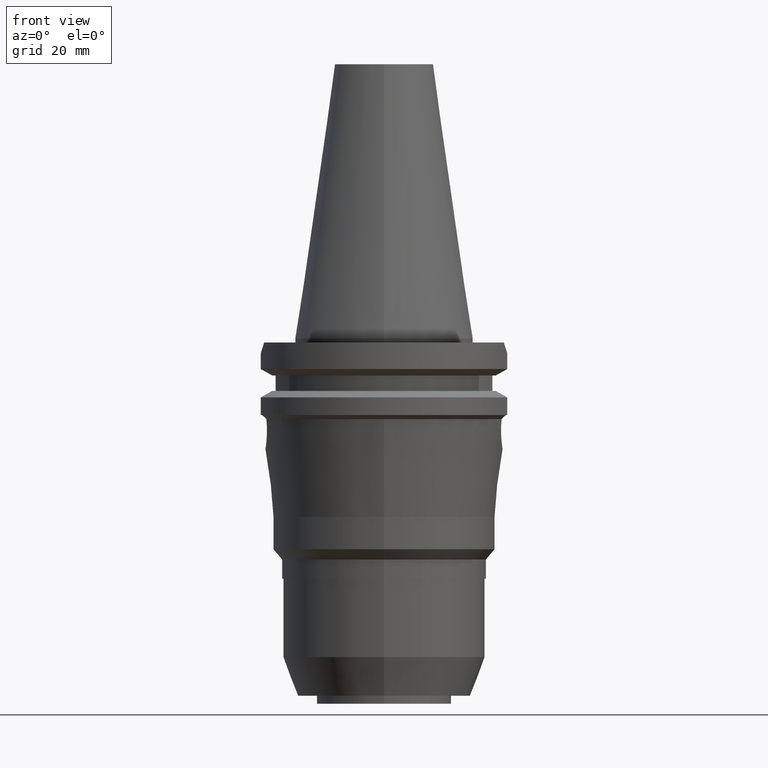
[diagram: clean part render]
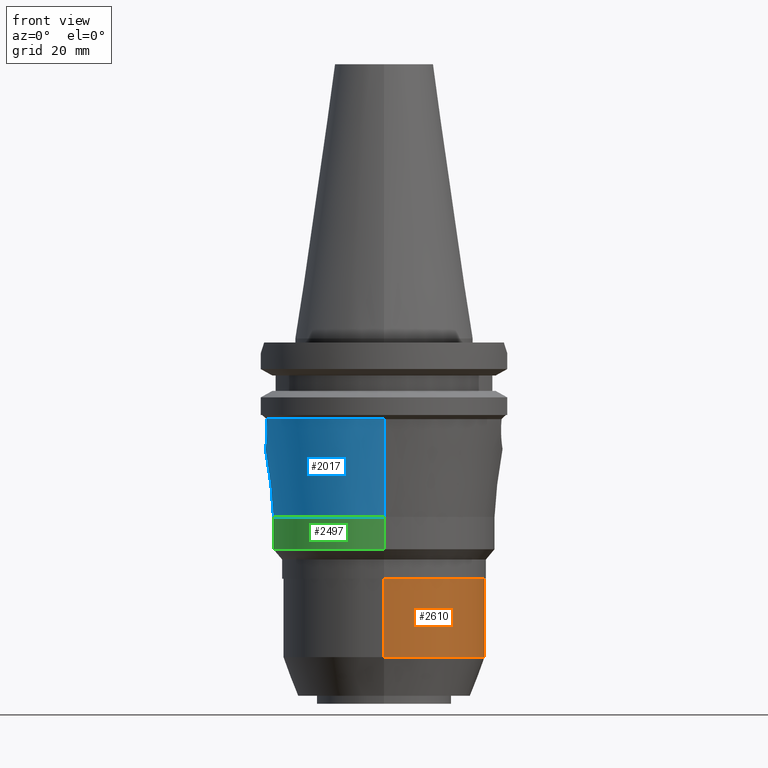
[diagram: same view with three faces highlighted in distinct colors, each labeled with its STEP entity id]
A machine part, front view with three faces highlighted in distinct colors.
Their STEP definitions:

[orange] entity #2610 — the highlighted cylindrical surface (partial cylindrical patch) has radius 25 mm, axis along (0, 0, -1).
#1199=CARTESIAN_POINT('',(0.E0,2.157919508608E-14,-5.98E1));
#1200=DIRECTION('',(0.E0,0.E0,-1.E0));
#1201=DIRECTION('',(0.E0,1.E0,0.E0));
#1202=AXIS2_PLACEMENT_3D('',#1199,#1200,#1201);
#1207=DIRECTION('',(0.E0,5.010237239334E-14,-1.E0));
#1208=VECTOR('',#1207,1.95E1);
#1209=CARTESIAN_POINT('',(0.E0,-2.5E1,-5.98E1));
#1210=LINE('',#1209,#1208);
#1214=DIRECTION('',(0.E0,-5.046675328347E-14,-1.E0));
#1215=VECTOR('',#1214,1.95E1);
#1216=CARTESIAN_POINT('',(0.E0,2.5E1,-5.98E1));
#1217=LINE('',#1216,#1215);
#1228=CARTESIAN_POINT('',(0.E0,0.E0,-7.93E1));
#1229=DIRECTION('',(0.E0,0.E0,1.E0));
#1230=DIRECTION('',(0.E0,-1.E0,0.E0));
#1231=AXIS2_PLACEMENT_3D('',#1228,#1229,#1230);
#1563=CARTESIAN_POINT('',(0.E0,2.5E1,-7.93E1));
#1564=VERTEX_POINT('',#1563);
#1565=CARTESIAN_POINT('',(0.E0,-2.5E1,-7.93E1));
#1566=VERTEX_POINT('',#1565);
#1567=CARTESIAN_POINT('',(0.E0,2.5E1,-5.98E1));
#1568=VERTEX_POINT('',#1567);
#1569=CARTESIAN_POINT('',(0.E0,-2.5E1,-5.98E1));
#1570=VERTEX_POINT('',#1569);
#2598=CARTESIAN_POINT('',(0.E0,2.157919508608E-14,7.62075E1));
#2599=DIRECTION('',(0.E0,0.E0,-1.E0));
#2600=DIRECTION('',(0.E0,-1.E0,0.E0));
#2601=AXIS2_PLACEMENT_3D('',#2598,#2599,#2600);
#2602=CYLINDRICAL_SURFACE('',#2601,2.5E1);
#2603=ORIENTED_EDGE('',*,*,#2588,.T.);
#2605=ORIENTED_EDGE('',*,*,#2604,.F.);
#2606=ORIENTED_EDGE('',*,*,#2591,.F.);
#2607=ORIENTED_EDGE('',*,*,#2578,.F.);
#2608=EDGE_LOOP('',(#2603,#2605,#2606,#2607));
#2609=FACE_OUTER_BOUND('',#2608,.F.);
#1203=CIRCLE('',#1202,2.5E1);
#1232=CIRCLE('',#1231,2.5E1);
#2578=EDGE_CURVE('',#1568,#1570,#1203,.T.);
#2588=EDGE_CURVE('',#1568,#1564,#1217,.T.);
#2591=EDGE_CURVE('',#1570,#1566,#1210,.T.);
#2604=EDGE_CURVE('',#1566,#1564,#1232,.T.);
#2610=ADVANCED_FACE('',(#2609),#2602,.T.);

[blue] entity #2017 — the highlighted conical surface has half-angle 6.749 deg.
#308=CARTESIAN_POINT('',(0.E0,0.E0,-2.005E1));
#309=DIRECTION('',(0.E0,0.E0,-1.E0));
#310=DIRECTION('',(-9.632883041744E-1,2.684690727827E-1,0.E0));
#311=AXIS2_PLACEMENT_3D('',#308,#309,#310);
#366=DIRECTION('',(0.E0,-1.175200651256E-1,-9.930705082183E-1));
#367=VECTOR('',#366,2.451991051843E1);
#368=CARTESIAN_POINT('',(0.E0,3.038158148100E1,-2.005E1));
#369=LINE('',#368,#367);
#389=CARTESIAN_POINT('',(-2.926622492553E1,8.156505483748E0,-2.004999819525E1));
#390=CARTESIAN_POINT('',(-2.921099384397E1,8.105146868599E0,-2.061609232912E1));
#391=CARTESIAN_POINT('',(-2.913501050834E1,7.883604053637E0,-2.173912690739E1));
#392=CARTESIAN_POINT('',(-2.911888775648E1,7.211097476447E0,-2.331831633671E1));
#393=CARTESIAN_POINT('',(-2.917951509164E1,6.216079261448E0,-2.473371616049E1));
#394=CARTESIAN_POINT('',(-2.928217504650E1,4.964354125946E0,-2.589915771780E1));
#395=CARTESIAN_POINT('',(-2.939350403278E1,3.467504020017E0,-2.679883849190E1));
#396=CARTESIAN_POINT('',(-2.947804265048E1,1.796455461381E0,-2.736491243958E1));
#397=CARTESIAN_POINT('',(-2.951006652893E1,4.719924837975E-2,
-2.756231201714E1));
#398=CARTESIAN_POINT('',(-2.948124837166E1,-1.703083218656E0,
-2.738502935618E1));
#399=CARTESIAN_POINT('',(-2.939912087724E1,-3.380279034446E0,
-2.683885799871E1));
#400=CARTESIAN_POINT('',(-2.928771767949E1,-4.897065401045E0,
-2.595116035239E1));
#401=CARTESIAN_POINT('',(-2.918217386241E1,-6.180490907556E0,
-2.477751119458E1));
#402=CARTESIAN_POINT('',(-2.911885776516E1,-7.199828511934E0,
-2.334278554672E1));
#403=CARTESIAN_POINT('',(-2.913464997163E1,-7.884339306547E0,
-2.174059414525E1));
#404=CARTESIAN_POINT('',(-2.921112291532E1,-8.105258966286E0,
-2.061478759710E1));
#405=CARTESIAN_POINT('',(-2.926622656216E1,-8.156499315550E0,
-2.004999908217E1));
#410=DIRECTION('',(0.E0,1.175200651256E-1,-9.930705082183E-1));
#411=VECTOR('',#410,2.451991051843E1);
#412=CARTESIAN_POINT('',(0.E0,-3.038158148100E1,-2.005E1));
#413=LINE('',#412,#411);
#417=CARTESIAN_POINT('',(0.E0,0.E0,-4.44E1));
#418=DIRECTION('',(0.E0,0.E0,-1.E0));
#419=DIRECTION('',(0.E0,-1.E0,0.E0));
#420=AXIS2_PLACEMENT_3D('',#417,#418,#419);
#822=CARTESIAN_POINT('',(0.E0,0.E0,-2.005E1));
#823=DIRECTION('',(0.E0,0.E0,-1.E0));
#824=DIRECTION('',(0.E0,-1.E0,0.E0));
#825=AXIS2_PLACEMENT_3D('',#822,#823,#824);
#1583=CARTESIAN_POINT('',(0.E0,2.75E1,-4.44E1));
#1584=VERTEX_POINT('',#1583);
#1585=CARTESIAN_POINT('',(0.E0,-2.75E1,-4.44E1));
#1586=VERTEX_POINT('',#1585);
#1587=VERTEX_POINT('',#389);
#1588=VERTEX_POINT('',#405);
#1589=CARTESIAN_POINT('',(0.E0,-3.038158148100E1,-2.005E1));
#1590=VERTEX_POINT('',#1589);
#1591=CARTESIAN_POINT('',(0.E0,3.038158148100E1,-2.005E1));
#1592=VERTEX_POINT('',#1591);
#2001=CARTESIAN_POINT('',(0.E0,0.E0,-3.2225E1));
#2002=DIRECTION('',(0.E0,0.E0,1.E0));
#2003=DIRECTION('',(0.E0,1.E0,0.E0));
#2004=AXIS2_PLACEMENT_3D('',#2001,#2002,#2003);
#2005=CONICAL_SURFACE('',#2004,2.894079074050E1,6.749E0);
#2007=ORIENTED_EDGE('',*,*,#2006,.T.);
#2009=ORIENTED_EDGE('',*,*,#2008,.F.);
#2010=ORIENTED_EDGE('',*,*,#1994,.T.);
#2012=ORIENTED_EDGE('',*,*,#2011,.T.);
#2013=ORIENTED_EDGE('',*,*,#1990,.F.);
#2014=ORIENTED_EDGE('',*,*,#1955,.F.);
#2015=EDGE_LOOP('',(#2007,#2009,#2010,#2012,#2013,#2014));
#2016=FACE_OUTER_BOUND('',#2015,.F.);
#312=CIRCLE('',#311,3.038158148100E1);
#406=B_SPLINE_CURVE_WITH_KNOTS('',3,(#389,#390,#391,#392,#393,#394,#395,#396,
#397,#398,#399,#400,#401,#402,#403,#404,#405),.UNSPECIFIED.,.F.,.F.,(4,1,1,1,1,
1,1,1,1,1,1,1,1,1,4),(0.E0,7.142857142857E-2,1.428571428571E-1,
2.142857142857E-1,2.857142857143E-1,3.571428571429E-1,4.285714285714E-1,5.E-1,
5.714285714286E-1,6.428571428571E-1,7.142857142857E-1,7.857142857143E-1,
8.571428571429E-1,9.285714285714E-1,1.E0),.UNSPECIFIED.);
#421=CIRCLE('',#420,2.75E1);
#826=CIRCLE('',#825,3.038158148100E1);
#1955=EDGE_CURVE('',#1587,#1592,#312,.T.);
#1990=EDGE_CURVE('',#1592,#1584,#369,.T.);
#1994=EDGE_CURVE('',#1590,#1586,#413,.T.);
#2006=EDGE_CURVE('',#1587,#1588,#406,.T.);
#2008=EDGE_CURVE('',#1590,#1588,#826,.T.);
#2011=EDGE_CURVE('',#1586,#1584,#421,.T.);
#2017=ADVANCED_FACE('',(#2016),#2005,.T.);

[green] entity #2497 — the highlighted cylindrical surface (partial cylindrical patch) has radius 27.5 mm, axis along (0, 0, -1).
#417=CARTESIAN_POINT('',(0.E0,0.E0,-4.44E1));
#418=DIRECTION('',(0.E0,0.E0,-1.E0));
#419=DIRECTION('',(0.E0,-1.E0,0.E0));
#420=AXIS2_PLACEMENT_3D('',#417,#418,#419);
#1101=DIRECTION('',(0.E0,-6.762670654653E-14,-1.E0));
#1102=VECTOR('',#1101,8.037729775920E0);
#1103=CARTESIAN_POINT('',(0.E0,-2.75E1,-4.44E1));
#1104=LINE('',#1103,#1102);
#1108=DIRECTION('',(0.E0,6.762670654653E-14,-1.E0));
#1109=VECTOR('',#1108,8.037729775920E0);
#1110=CARTESIAN_POINT('',(0.E0,2.75E1,-4.44E1));
#1111=LINE('',#1110,#1109);
#1138=CARTESIAN_POINT('',(0.E0,0.E0,-5.243772977592E1));
#1139=DIRECTION('',(0.E0,0.E0,1.E0));
#1140=DIRECTION('',(0.E0,1.E0,0.E0));
#1141=AXIS2_PLACEMENT_3D('',#1138,#1139,#1140);
#1579=CARTESIAN_POINT('',(0.E0,2.75E1,-5.243772977592E1));
#1580=VERTEX_POINT('',#1579);
#1581=CARTESIAN_POINT('',(0.E0,-2.75E1,-5.243772977592E1));
#1582=VERTEX_POINT('',#1581);
#1583=CARTESIAN_POINT('',(0.E0,2.75E1,-4.44E1));
#1584=VERTEX_POINT('',#1583);
#1585=CARTESIAN_POINT('',(0.E0,-2.75E1,-4.44E1));
#1586=VERTEX_POINT('',#1585);
#2483=CARTESIAN_POINT('',(0.E0,2.157919508608E-14,7.62075E1));
#2484=DIRECTION('',(0.E0,0.E0,-1.E0));
#2485=DIRECTION('',(0.E0,-1.E0,0.E0));
#2486=AXIS2_PLACEMENT_3D('',#2483,#2484,#2485);
#2487=CYLINDRICAL_SURFACE('',#2486,2.75E1);
#2489=ORIENTED_EDGE('',*,*,#2488,.F.);
#2490=ORIENTED_EDGE('',*,*,#2011,.F.);
#2492=ORIENTED_EDGE('',*,*,#2491,.T.);
#2494=ORIENTED_EDGE('',*,*,#2493,.F.);
#2495=EDGE_LOOP('',(#2489,#2490,#2492,#2494));
#2496=FACE_OUTER_BOUND('',#2495,.F.);
#421=CIRCLE('',#420,2.75E1);
#1142=CIRCLE('',#1141,2.75E1);
#2011=EDGE_CURVE('',#1586,#1584,#421,.T.);
#2488=EDGE_CURVE('',#1584,#1580,#1111,.T.);
#2491=EDGE_CURVE('',#1586,#1582,#1104,.T.);
#2493=EDGE_CURVE('',#1580,#1582,#1142,.T.);
#2497=ADVANCED_FACE('',(#2496),#2487,.T.);